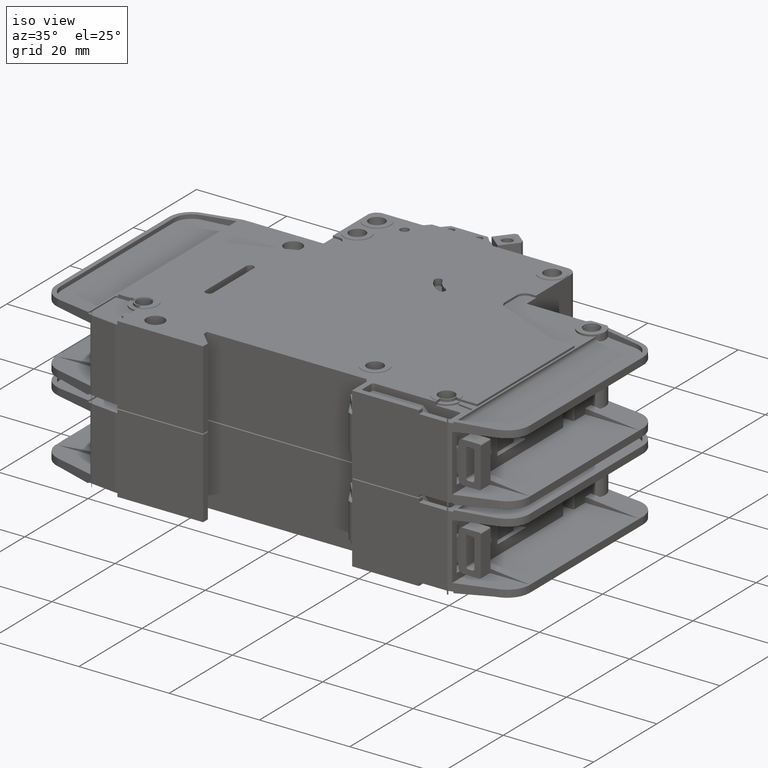
[diagram: clean part render]
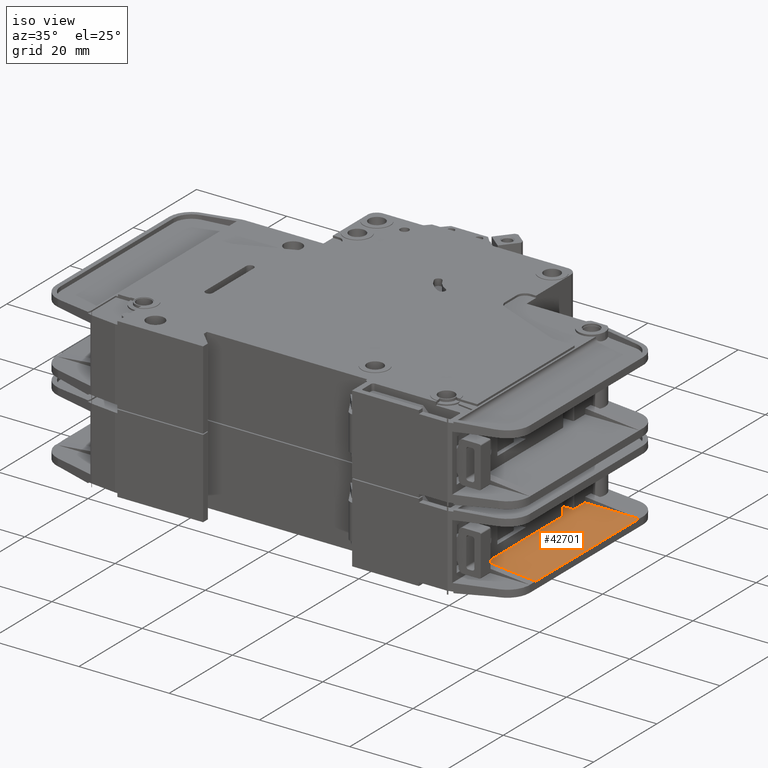
[diagram: same view with one face highlighted and labeled with its STEP entity id]
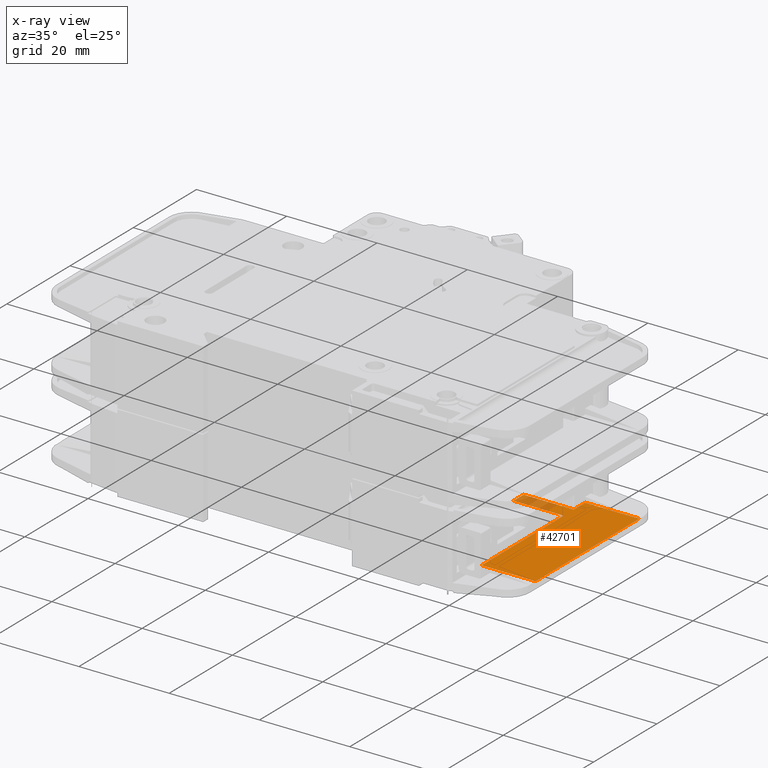
[diagram: x-ray of the same camera — body ghosted, the highlighted face saturated]
A machine part, iso view. The second image highlights one B-rep face of the part: STEP entity #42701.
The next image is the same camera in x-ray: the body ghosted, the highlighted face saturated — about 6% of this face is hidden behind the body in this view.
In plain terms, the highlighted planar face has unit normal (0, 0, 1).
Its self-contained STEP definition (entity closure, byte-faithful):
#458 = DIRECTION ( 'NONE',  ( 1.000000000000000000, 0.0000000000000000000, 0.0000000000000000000 ) ) ;
#2642 = CARTESIAN_POINT ( 'NONE',  ( 92.50000000000000000, 9.500000000000000000, -24.00000000000001100 ) ) ;
#2853 = DIRECTION ( 'NONE',  ( 1.000000000000000000, -0.0000000000000000000, 7.930164461611867500E-016 ) ) ;
#2976 = VERTEX_POINT ( 'NONE', #14153 ) ;
#3075 = ORIENTED_EDGE ( 'NONE', *, *, #10215, .F. ) ;
#3978 = CARTESIAN_POINT ( 'NONE',  ( 80.25000000000002800, 38.69999999999974700, -24.00000000000000700 ) ) ;
#4724 = DIRECTION ( 'NONE',  ( -0.0000000000000000000, 1.000000000000000000, -0.0000000000000000000 ) ) ;
#4968 = LINE ( 'NONE', #38438, #23882 ) ;
#5349 = CARTESIAN_POINT ( 'NONE',  ( 80.50000000000001400, 35.24999999999973700, -24.00000000000000700 ) ) ;
#5926 = VECTOR ( 'NONE', #17289, 1000.000000000000000 ) ;
#6557 = VERTEX_POINT ( 'NONE', #5349 ) ;
#7623 = VERTEX_POINT ( 'NONE', #24234 ) ;
#9449 = DIRECTION ( 'NONE',  ( -1.000000000000000000, -0.0000000000000000000, 7.228014483236698300E-017 ) ) ;
#10215 = EDGE_CURVE ( 'NONE', #7623, #13609, #4968, .T. ) ;
#10505 = FACE_OUTER_BOUND ( 'NONE', #18839, .T. ) ;
#10674 = VERTEX_POINT ( 'NONE', #11156 ) ;
#11156 = CARTESIAN_POINT ( 'NONE',  ( 80.50000000000001400, 38.94999999999974700, -24.00000000000000700 ) ) ;
#11929 = VERTEX_POINT ( 'NONE', #3978 ) ;
#12375 = VECTOR ( 'NONE', #17587, 1000.000000000000000 ) ;
#12569 = CARTESIAN_POINT ( 'NONE',  ( 80.25000000000001400, 38.94999999999974700, -24.00000000000000700 ) ) ;
#12645 = EDGE_CURVE ( 'NONE', #7623, #2976, #25411, .T. ) ;
#13609 = VERTEX_POINT ( 'NONE', #44040 ) ;
#14153 = CARTESIAN_POINT ( 'NONE',  ( 80.25000000000001400, 35.49999999999973700, -24.00000000000000700 ) ) ;
#14519 = DIRECTION ( 'NONE',  ( 1.000000000000000000, 0.0000000000000000000, -7.228014483236698300E-017 ) ) ;
#15312 = VECTOR ( 'NONE', #2853, 1000.000000000000000 ) ;
#15476 = VECTOR ( 'NONE', #35188, 1000.000000000000000 ) ;
#16351 = DIRECTION ( 'NONE',  ( 1.000000000000000000, 0.0000000000000000000, 0.0000000000000000000 ) ) ;
#17289 = DIRECTION ( 'NONE',  ( 1.000000000000000000, -0.0000000000000000000, 7.930164461611867500E-016 ) ) ;
#17578 = AXIS2_PLACEMENT_3D ( 'NONE', #45881, #23086, #458 ) ;
#17587 = DIRECTION ( 'NONE',  ( -1.000000000000000000, -0.0000000000000000000, -0.0000000000000000000 ) ) ;
#18839 = EDGE_LOOP ( 'NONE', ( #42732, #39728, #33043, #31712, #36201, #20256, #48943, #3075, #47562, #41317 ) ) ;
#19299 = CARTESIAN_POINT ( 'NONE',  ( 92.46671467041520000, -7.077671781985372900E-013, -24.00000000000001100 ) ) ;
#20102 = VERTEX_POINT ( 'NONE', #48860 ) ;
#20256 = ORIENTED_EDGE ( 'NONE', *, *, #27180, .T. ) ;
#21826 = AXIS2_PLACEMENT_3D ( 'NONE', #12569, #39147, #16351 ) ;
#22035 = CARTESIAN_POINT ( 'NONE',  ( 80.50000000000001400, 9.500000000000000000, -24.00000000000000700 ) ) ;
#22325 = EDGE_CURVE ( 'NONE', #20102, #24996, #44194, .T. ) ;
#23086 = DIRECTION ( 'NONE',  ( -7.228014483236698300E-017, -0.0000000000000000000, -1.000000000000000000 ) ) ;
#23323 = DIRECTION ( 'NONE',  ( -0.0000000000000000000, 1.000000000000000000, -0.0000000000000000000 ) ) ;
#23882 = VECTOR ( 'NONE', #42255, 1000.000000000000000 ) ;
#23887 = EDGE_CURVE ( 'NONE', #28471, #6557, #25586, .T. ) ;
#24234 = CARTESIAN_POINT ( 'NONE',  ( 69.37500000000001400, 35.49999999999973700, -24.00000000000001800 ) ) ;
#24996 = VERTEX_POINT ( 'NONE', #31937 ) ;
#25046 = CIRCLE ( 'NONE', #17578, 0.2500000000000002200 ) ;
#25083 = EDGE_CURVE ( 'NONE', #13609, #11929, #26061, .T. ) ;
#25146 = EDGE_CURVE ( 'NONE', #39508, #28471, #42690, .T. ) ;
#25173 = VECTOR ( 'NONE', #9449, 1000.000000000000000 ) ;
#25411 = LINE ( 'NONE', #40629, #15312 ) ;
#25586 = LINE ( 'NONE', #46652, #15476 ) ;
#25810 = CARTESIAN_POINT ( 'NONE',  ( -2.233271985342012800E-015, -7.077671781985372900E-013, -24.00000000000000400 ) ) ;
#26061 = LINE ( 'NONE', #40083, #5926 ) ;
#26439 = VECTOR ( 'NONE', #4724, 1000.000000000000000 ) ;
#27180 = EDGE_CURVE ( 'NONE', #10674, #11929, #39880, .T. ) ;
#27236 = CARTESIAN_POINT ( 'NONE',  ( 80.50000000000001400, -7.077671781985372900E-013, -24.00000000000000700 ) ) ;
#28471 = VERTEX_POINT ( 'NONE', #22035 ) ;
#31397 = CARTESIAN_POINT ( 'NONE',  ( 92.46671467041520000, 9.500000000000000000, -24.00000000000001100 ) ) ;
#31712 = ORIENTED_EDGE ( 'NONE', *, *, #22325, .T. ) ;
#31937 = CARTESIAN_POINT ( 'NONE',  ( 80.50000000000001400, 42.29999999999999700, -24.00000000000000700 ) ) ;
#32186 = CARTESIAN_POINT ( 'NONE',  ( -2.233271985342012800E-015, 42.29999999999999700, -24.00000000000000400 ) ) ;
#33043 = ORIENTED_EDGE ( 'NONE', *, *, #34371, .T. ) ;
#33263 = VECTOR ( 'NONE', #23323, 1000.000000000000000 ) ;
#34371 = EDGE_CURVE ( 'NONE', #39508, #20102, #43351, .T. ) ;
#35188 = DIRECTION ( 'NONE',  ( -0.0000000000000000000, 1.000000000000000000, -0.0000000000000000000 ) ) ;
#35486 = AXIS2_PLACEMENT_3D ( 'NONE', #25810, #37260, #14519 ) ;
#36201 = ORIENTED_EDGE ( 'NONE', *, *, #44634, .F. ) ;
#36542 = LINE ( 'NONE', #27236, #26439 ) ;
#37260 = DIRECTION ( 'NONE',  ( 7.228014483236698300E-017, 0.0000000000000000000, 1.000000000000000000 ) ) ;
#38438 = CARTESIAN_POINT ( 'NONE',  ( 69.37500000000001400, 7.937912858786431300E-030, -24.00000000000001800 ) ) ;
#39147 = DIRECTION ( 'NONE',  ( -7.228014483236698300E-017, -0.0000000000000000000, -1.000000000000000000 ) ) ;
#39508 = VERTEX_POINT ( 'NONE', #31397 ) ;
#39728 = ORIENTED_EDGE ( 'NONE', *, *, #25146, .F. ) ;
#39880 = CIRCLE ( 'NONE', #21826, 0.2500000000000002200 ) ;
#40083 = CARTESIAN_POINT ( 'NONE',  ( 69.37500000000001400, 38.69999999999974700, -24.00000000000001800 ) ) ;
#40629 = CARTESIAN_POINT ( 'NONE',  ( 69.37500000000001400, 35.49999999999973700, -24.00000000000001800 ) ) ;
#41317 = ORIENTED_EDGE ( 'NONE', *, *, #48679, .T. ) ;
#42255 = DIRECTION ( 'NONE',  ( -9.860761315262645400E-032, 1.000000000000000000, -7.819745894673292500E-047 ) ) ;
#42690 = LINE ( 'NONE', #2642, #12375 ) ;
#42701 = ADVANCED_FACE ( 'NONE', ( #10505 ), #48550, .T. ) ;
#42732 = ORIENTED_EDGE ( 'NONE', *, *, #23887, .F. ) ;
#43351 = LINE ( 'NONE', #19299, #33263 ) ;
#44040 = CARTESIAN_POINT ( 'NONE',  ( 69.37500000000001400, 38.69999999999974700, -24.00000000000001800 ) ) ;
#44194 = LINE ( 'NONE', #32186, #25173 ) ;
#44634 = EDGE_CURVE ( 'NONE', #10674, #24996, #36542, .T. ) ;
#45881 = CARTESIAN_POINT ( 'NONE',  ( 80.25000000000001400, 35.24999999999973700, -24.00000000000000700 ) ) ;
#46652 = CARTESIAN_POINT ( 'NONE',  ( 80.50000000000001400, -7.077671781985372900E-013, -24.00000000000000700 ) ) ;
#47562 = ORIENTED_EDGE ( 'NONE', *, *, #12645, .T. ) ;
#48550 = PLANE ( 'NONE',  #35486 ) ;
#48679 = EDGE_CURVE ( 'NONE', #2976, #6557, #25046, .T. ) ;
#48860 = CARTESIAN_POINT ( 'NONE',  ( 92.46671467041520000, 42.29999999999999700, -24.00000000000001100 ) ) ;
#48943 = ORIENTED_EDGE ( 'NONE', *, *, #25083, .F. ) ;